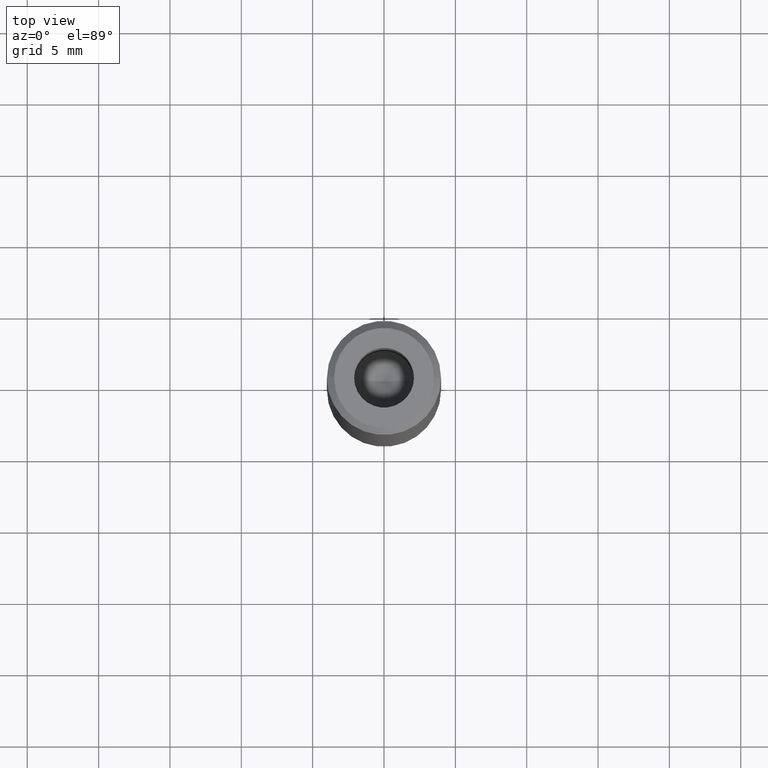
[diagram: clean part render]
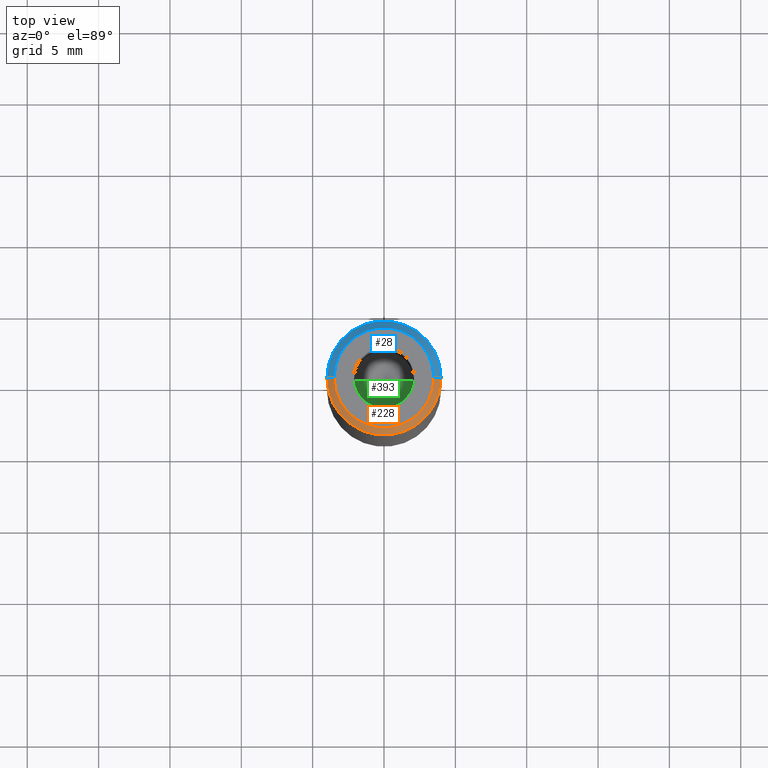
[diagram: same view with three faces highlighted in distinct colors, each labeled with its STEP entity id]
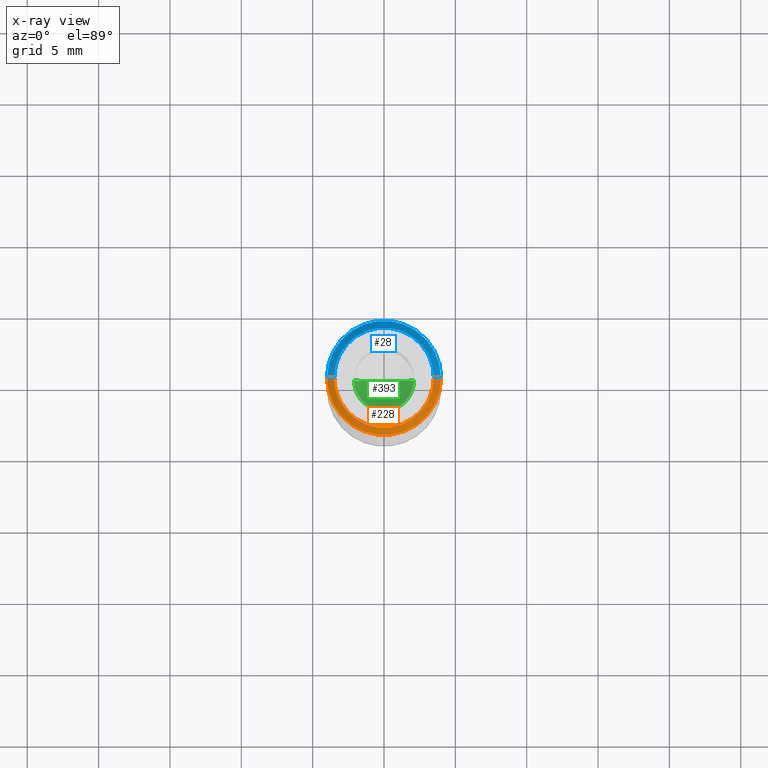
[diagram: x-ray of the same camera — body ghosted, the three highlighted faces saturated]
A machine part, top view with three faces highlighted in distinct colors.
The next image is the same camera in x-ray (body ghosted, the three faces saturated) — at least one of them is partly hidden behind the body in this view.
Their STEP definitions:

[orange] entity #228 — the highlighted conical surface has half-angle 45 deg.
#36 = CARTESIAN_POINT ( 'NONE',  ( 0.000000000000000000, 0.000000000000000000, 0.000000000000000000 ) ) ;
#41 = LINE ( 'NONE', #211, #325 ) ;
#50 = ORIENTED_EDGE ( 'NONE', *, *, #445, .F. ) ;
#61 = AXIS2_PLACEMENT_3D ( 'NONE', #36, #496, #396 ) ;
#73 = EDGE_CURVE ( 'NONE', #213, #129, #570, .T. ) ;
#78 = CIRCLE ( 'NONE', #88, 4.000000000000000000 ) ;
#84 = CARTESIAN_POINT ( 'NONE',  ( -4.000000000000000000, 4.898587196589412829E-16, -0.5000000000000108802 ) ) ;
#86 = AXIS2_PLACEMENT_3D ( 'NONE', #98, #91, #375 ) ;
#88 = AXIS2_PLACEMENT_3D ( 'NONE', #429, #344, #110 ) ;
#91 = DIRECTION ( 'NONE',  ( 0.000000000000000000, 0.000000000000000000, -1.000000000000000000 ) ) ;
#93 = EDGE_CURVE ( 'NONE', #129, #475, #41, .T. ) ;
#95 = FACE_OUTER_BOUND ( 'NONE', #516, .T. ) ;
#98 = CARTESIAN_POINT ( 'NONE',  ( 0.000000000000000000, 0.000000000000000000, 0.000000000000000000 ) ) ;
#110 = DIRECTION ( 'NONE',  ( 1.000000000000000000, 0.000000000000000000, 0.000000000000000000 ) ) ;
#117 = VERTEX_POINT ( 'NONE', #84 ) ;
#129 = VERTEX_POINT ( 'NONE', #315 ) ;
#154 = CARTESIAN_POINT ( 'NONE',  ( -3.499999999999989342, 0.000000000000000000, 0.000000000000000000 ) ) ;
#211 = CARTESIAN_POINT ( 'NONE',  ( 3.499999999999989342, 4.286263797015722790E-16, 0.000000000000000000 ) ) ;
#213 = VERTEX_POINT ( 'NONE', #371 ) ;
#228 = ADVANCED_FACE ( 'NONE', ( #95 ), #510, .T. ) ;
#264 = ORIENTED_EDGE ( 'NONE', *, *, #457, .T. ) ;
#291 = LINE ( 'NONE', #154, #367 ) ;
#293 = DIRECTION ( 'NONE',  ( -0.7071067811865474617, 0.000000000000000000, -0.7071067811865474617 ) ) ;
#294 = ORIENTED_EDGE ( 'NONE', *, *, #73, .F. ) ;
#302 = DIRECTION ( 'NONE',  ( 0.7071067811865474617, 8.659560562354932858E-17, -0.7071067811865474617 ) ) ;
#315 = CARTESIAN_POINT ( 'NONE',  ( 3.499999999999989342, 4.592425496802568056E-16, 0.000000000000000000 ) ) ;
#325 = VECTOR ( 'NONE', #302, 1000.000000000000114 ) ;
#344 = DIRECTION ( 'NONE',  ( 0.000000000000000000, 0.000000000000000000, -1.000000000000000000 ) ) ;
#367 = VECTOR ( 'NONE', #293, 1000.000000000000114 ) ;
#371 = CARTESIAN_POINT ( 'NONE',  ( -3.499999999999989342, 0.000000000000000000, 0.000000000000000000 ) ) ;
#375 = DIRECTION ( 'NONE',  ( -1.000000000000000000, 0.000000000000000000, 0.000000000000000000 ) ) ;
#396 = DIRECTION ( 'NONE',  ( 1.000000000000000000, 0.000000000000000000, 0.000000000000000000 ) ) ;
#429 = CARTESIAN_POINT ( 'NONE',  ( 0.000000000000000000, 0.000000000000000000, -0.5000000000000108802 ) ) ;
#445 = EDGE_CURVE ( 'NONE', #475, #117, #78, .T. ) ;
#457 = EDGE_CURVE ( 'NONE', #213, #117, #291, .T. ) ;
#475 = VERTEX_POINT ( 'NONE', #579 ) ;
#496 = DIRECTION ( 'NONE',  ( -0.000000000000000000, -0.000000000000000000, 1.000000000000000000 ) ) ;
#510 = CONICAL_SURFACE ( 'NONE', #86, 3.499999999999989342, 0.7853981633974482790 ) ;
#516 = EDGE_LOOP ( 'NONE', ( #524, #294, #264, #50 ) ) ;
#524 = ORIENTED_EDGE ( 'NONE', *, *, #93, .F. ) ;
#570 = CIRCLE ( 'NONE', #61, 3.499999999999989342 ) ;
#579 = CARTESIAN_POINT ( 'NONE',  ( 4.000000000000000000, 0.000000000000000000, -0.5000000000000108802 ) ) ;

[blue] entity #28 — the highlighted conical surface has half-angle 45 deg.
#10 = ORIENTED_EDGE ( 'NONE', *, *, #457, .F. ) ;
#18 = ORIENTED_EDGE ( 'NONE', *, *, #321, .F. ) ;
#28 = ADVANCED_FACE ( 'NONE', ( #519 ), #258, .T. ) ;
#41 = LINE ( 'NONE', #211, #325 ) ;
#55 = CARTESIAN_POINT ( 'NONE',  ( 0.000000000000000000, 0.000000000000000000, 0.000000000000000000 ) ) ;
#84 = CARTESIAN_POINT ( 'NONE',  ( -4.000000000000000000, 4.898587196589412829E-16, -0.5000000000000108802 ) ) ;
#93 = EDGE_CURVE ( 'NONE', #129, #475, #41, .T. ) ;
#96 = AXIS2_PLACEMENT_3D ( 'NONE', #424, #386, #296 ) ;
#105 = CARTESIAN_POINT ( 'NONE',  ( 0.000000000000000000, 0.000000000000000000, 0.000000000000000000 ) ) ;
#114 = EDGE_LOOP ( 'NONE', ( #18, #157, #243, #10 ) ) ;
#117 = VERTEX_POINT ( 'NONE', #84 ) ;
#129 = VERTEX_POINT ( 'NONE', #315 ) ;
#137 = DIRECTION ( 'NONE',  ( -0.000000000000000000, -0.000000000000000000, 1.000000000000000000 ) ) ;
#154 = CARTESIAN_POINT ( 'NONE',  ( -3.499999999999989342, 0.000000000000000000, 0.000000000000000000 ) ) ;
#157 = ORIENTED_EDGE ( 'NONE', *, *, #93, .T. ) ;
#211 = CARTESIAN_POINT ( 'NONE',  ( 3.499999999999989342, 4.286263797015722790E-16, 0.000000000000000000 ) ) ;
#213 = VERTEX_POINT ( 'NONE', #371 ) ;
#243 = ORIENTED_EDGE ( 'NONE', *, *, #380, .F. ) ;
#258 = CONICAL_SURFACE ( 'NONE', #472, 3.499999999999989342, 0.7853981633974482790 ) ;
#290 = DIRECTION ( 'NONE',  ( 0.000000000000000000, 0.000000000000000000, -1.000000000000000000 ) ) ;
#291 = LINE ( 'NONE', #154, #367 ) ;
#293 = DIRECTION ( 'NONE',  ( -0.7071067811865474617, 0.000000000000000000, -0.7071067811865474617 ) ) ;
#296 = DIRECTION ( 'NONE',  ( 1.000000000000000000, 0.000000000000000000, 0.000000000000000000 ) ) ;
#298 = AXIS2_PLACEMENT_3D ( 'NONE', #55, #137, #373 ) ;
#302 = DIRECTION ( 'NONE',  ( 0.7071067811865474617, 8.659560562354932858E-17, -0.7071067811865474617 ) ) ;
#315 = CARTESIAN_POINT ( 'NONE',  ( 3.499999999999989342, 4.592425496802568056E-16, 0.000000000000000000 ) ) ;
#321 = EDGE_CURVE ( 'NONE', #129, #213, #384, .T. ) ;
#325 = VECTOR ( 'NONE', #302, 1000.000000000000114 ) ;
#367 = VECTOR ( 'NONE', #293, 1000.000000000000114 ) ;
#371 = CARTESIAN_POINT ( 'NONE',  ( -3.499999999999989342, 0.000000000000000000, 0.000000000000000000 ) ) ;
#373 = DIRECTION ( 'NONE',  ( 1.000000000000000000, 0.000000000000000000, 0.000000000000000000 ) ) ;
#380 = EDGE_CURVE ( 'NONE', #117, #475, #392, .T. ) ;
#384 = CIRCLE ( 'NONE', #298, 3.499999999999989342 ) ;
#386 = DIRECTION ( 'NONE',  ( 0.000000000000000000, 0.000000000000000000, -1.000000000000000000 ) ) ;
#392 = CIRCLE ( 'NONE', #96, 4.000000000000000000 ) ;
#424 = CARTESIAN_POINT ( 'NONE',  ( 0.000000000000000000, 0.000000000000000000, -0.5000000000000108802 ) ) ;
#457 = EDGE_CURVE ( 'NONE', #213, #117, #291, .T. ) ;
#472 = AXIS2_PLACEMENT_3D ( 'NONE', #105, #290, #543 ) ;
#475 = VERTEX_POINT ( 'NONE', #579 ) ;
#519 = FACE_OUTER_BOUND ( 'NONE', #114, .T. ) ;
#543 = DIRECTION ( 'NONE',  ( -1.000000000000000000, 0.000000000000000000, 0.000000000000000000 ) ) ;
#579 = CARTESIAN_POINT ( 'NONE',  ( 4.000000000000000000, 0.000000000000000000, -0.5000000000000108802 ) ) ;

[green] entity #393 — the highlighted conical surface has half-angle 59 deg.
#21 = VECTOR ( 'NONE', #408, 1000.000000000000000 ) ;
#62 = AXIS2_PLACEMENT_3D ( 'NONE', #395, #354, #119 ) ;
#108 = DIRECTION ( 'NONE',  ( 1.000000000000000000, 0.000000000000000000, 0.000000000000000000 ) ) ;
#119 = DIRECTION ( 'NONE',  ( 1.000000000000000000, 0.000000000000000000, 0.000000000000000000 ) ) ;
#145 = VERTEX_POINT ( 'NONE', #537 ) ;
#148 = CARTESIAN_POINT ( 'NONE',  ( -3.370670652075219192E-15, 0.000000000000000000, -13.76180729995787644 ) ) ;
#152 = VERTEX_POINT ( 'NONE', #444 ) ;
#192 = AXIS2_PLACEMENT_3D ( 'NONE', #529, #204, #108 ) ;
#204 = DIRECTION ( 'NONE',  ( -0.000000000000000000, -0.000000000000000000, 1.000000000000000000 ) ) ;
#221 = ORIENTED_EDGE ( 'NONE', *, *, #265, .F. ) ;
#242 = FACE_OUTER_BOUND ( 'NONE', #462, .T. ) ;
#259 = DIRECTION ( 'NONE',  ( -0.8571673007021116675, 1.049727191138617833E-16, 0.5150380749100552658 ) ) ;
#265 = EDGE_CURVE ( 'NONE', #451, #152, #461, .T. ) ;
#286 = VECTOR ( 'NONE', #259, 1000.000000000000000 ) ;
#297 = ORIENTED_EDGE ( 'NONE', *, *, #487, .T. ) ;
#354 = DIRECTION ( 'NONE',  ( -0.000000000000000000, -0.000000000000000000, 1.000000000000000000 ) ) ;
#366 = CONICAL_SURFACE ( 'NONE', #192, 2.099999999999996980, 1.029744258676653201 ) ;
#372 = ORIENTED_EDGE ( 'NONE', *, *, #515, .T. ) ;
#393 = ADVANCED_FACE ( 'NONE', ( #242 ), #366, .F. ) ;
#395 = CARTESIAN_POINT ( 'NONE',  ( 0.000000000000000000, 0.000000000000000000, -12.50000000000000000 ) ) ;
#408 = DIRECTION ( 'NONE',  ( 0.8571673007021116675, 0.000000000000000000, 0.5150380749100552658 ) ) ;
#443 = LINE ( 'NONE', #577, #286 ) ;
#444 = CARTESIAN_POINT ( 'NONE',  ( 2.099999999999996980, 0.000000000000000000, -12.50000000000000000 ) ) ;
#451 = VERTEX_POINT ( 'NONE', #148 ) ;
#458 = CARTESIAN_POINT ( 'NONE',  ( 2.099999999999996980, 0.000000000000000000, -12.50000000000000000 ) ) ;
#461 = LINE ( 'NONE', #458, #21 ) ;
#462 = EDGE_LOOP ( 'NONE', ( #221, #372, #297 ) ) ;
#473 = CIRCLE ( 'NONE', #62, 2.099999999999996980 ) ;
#487 = EDGE_CURVE ( 'NONE', #145, #152, #473, .T. ) ;
#515 = EDGE_CURVE ( 'NONE', #451, #145, #443, .T. ) ;
#529 = CARTESIAN_POINT ( 'NONE',  ( 0.000000000000000000, 0.000000000000000000, -12.50000000000000000 ) ) ;
#537 = CARTESIAN_POINT ( 'NONE',  ( -2.099999999999996980, 2.571758278209438013E-16, -12.50000000000000000 ) ) ;
#577 = CARTESIAN_POINT ( 'NONE',  ( -2.099999999999996980, 2.571758278209438013E-16, -12.50000000000000000 ) ) ;